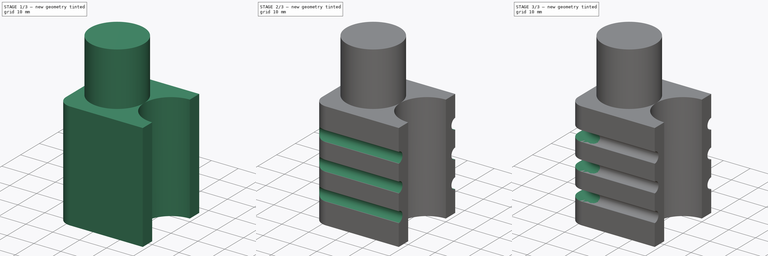
[diagram: build sequence overview — one tinted view per stage of 3, left to right]
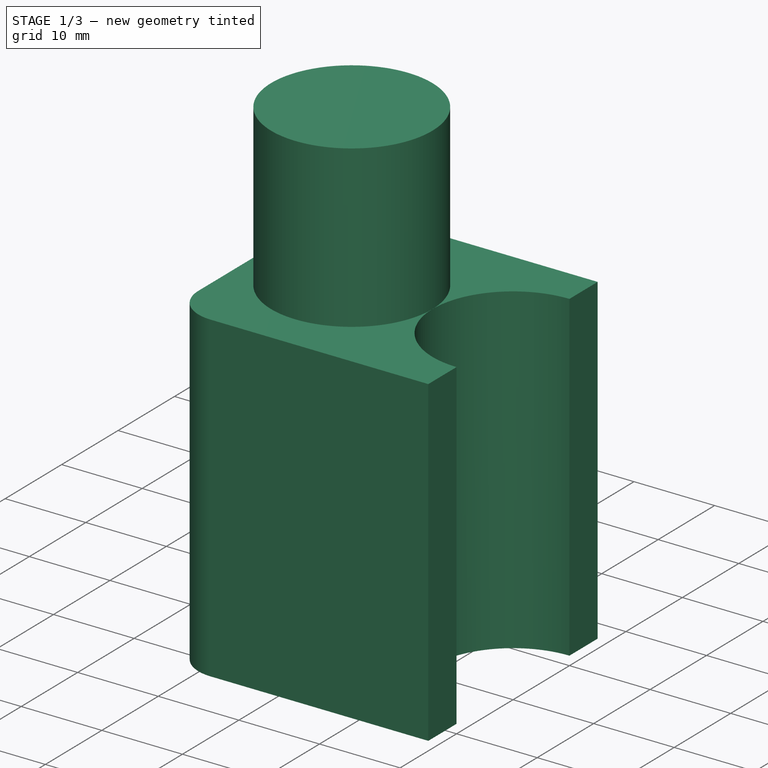
[diagram: stage 1 of 3 — iso view after this stage's code; geometry added in this stage tinted green]
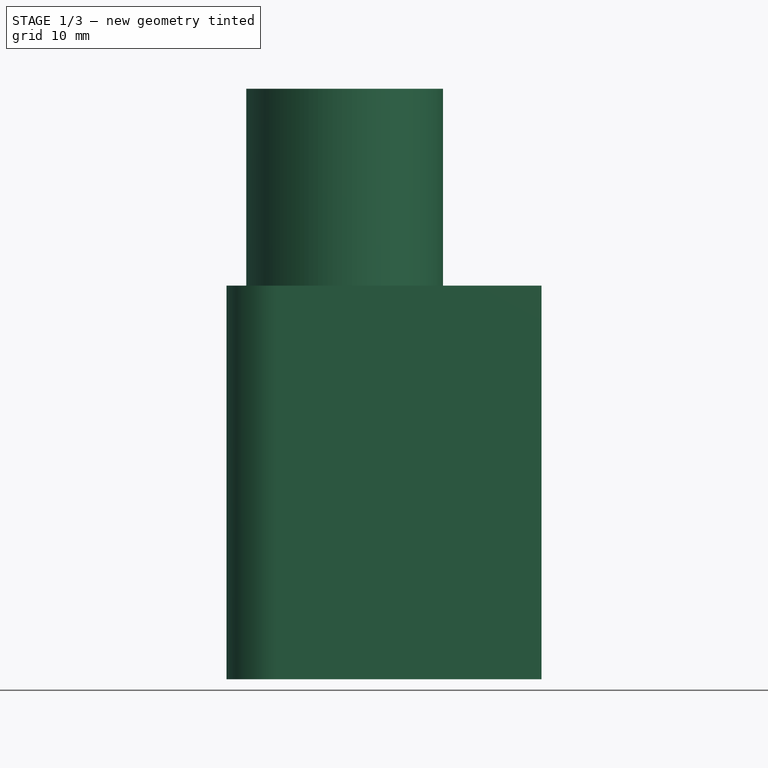
[diagram: stage 1 of 3 — front view after this stage's code; geometry added in this stage tinted green]
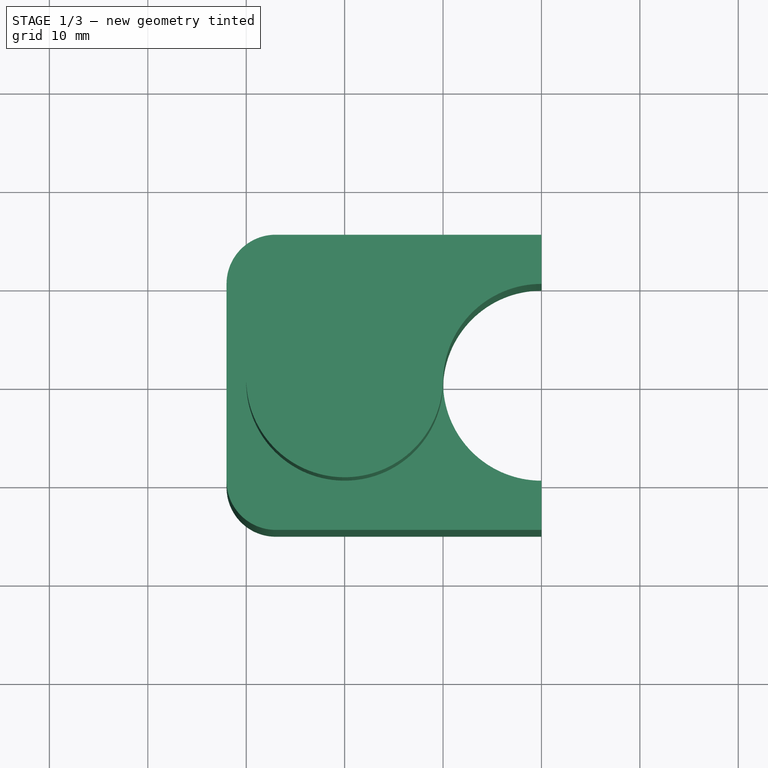
[diagram: stage 1 of 3 — top view after this stage's code; geometry added in this stage tinted green]
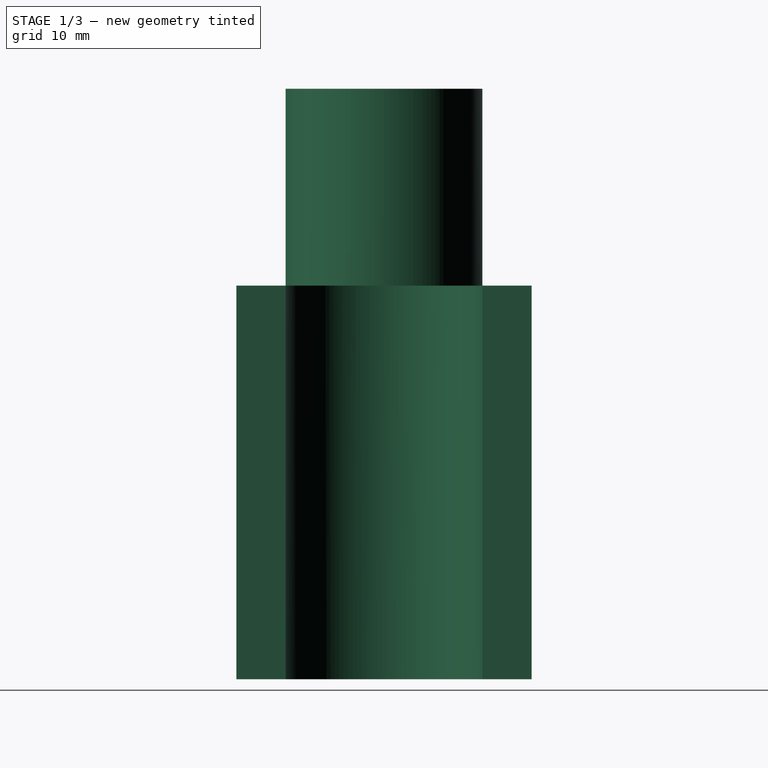
[diagram: stage 1 of 3 — right view after this stage's code; geometry added in this stage tinted green]
FCSTD DOCUMENT  (FreeCAD 0.21R33771 (Git))
Label: christmasTopStarHolder
License: All rights reserved
LicenseURL: http://en.wikipedia.org/wiki/All_rights_reserved
objects: Sketcher::SketchObject×5, PartDesign::Pad×2, PartDesign::Pocket×2, Spreadsheet::Sheet×1, PartDesign::Groove×1, PartDesign::Body×1
note: 16 computed .brp shape members not serialized (recipe doc carries the construction recipe); baked Part::Feature solids carry a one-line shape summary decoded from their .brp

FEATURE [Sketcher::SketchObject] Sketch
  FullyConstrained = true
  MapMode = 5
  Support = -> [XY_Plane]
  sketch-geometry (12):
    g0: LineSegment StartX=-32 StartY=15 StartZ=0 EndX=0 EndY=15 EndZ=0
    g1: LineSegment StartX=0 StartY=-15 StartZ=0 EndX=-32 EndY=-15 EndZ=0
    g2: LineSegment StartX=-32 StartY=-15 StartZ=0 EndX=-32 EndY=15 EndZ=0
    g3: ArcOfCircle CenterX=0 CenterY=0 CenterZ=0 NormalX=0 NormalY=0 NormalZ=1 AngleXU=0 Radius=10 StartAngle=1.5708 EndAngle=4.71239
    g4: LineSegment StartX=0 StartY=15 StartZ=0 EndX=0 EndY=10 EndZ=0
    g5: LineSegment StartX=0 StartY=-10 StartZ=0 EndX=0 EndY=-15 EndZ=0
    g6: Circle CenterX=-20 CenterY=0 CenterZ=0 NormalX=0 NormalY=0 NormalZ=1 AngleXU=0 Radius=10
    g7: LineSegment StartX=-32 StartY=10 StartZ=0 EndX=-32 EndY=-10 EndZ=0
    g8: LineSegment StartX=-27 StartY=-15 StartZ=0 EndX=0 EndY=-15 EndZ=0
    g9: LineSegment StartX=-27 StartY=15 StartZ=0 EndX=0 EndY=15 EndZ=0
    g10: ArcOfCircle CenterX=-27 CenterY=10 CenterZ=0 NormalX=0 NormalY=0 NormalZ=1 AngleXU=0 Radius=5 StartAngle=1.5708 EndAngle=3.14159
    g11: ArcOfCircle CenterX=-27 CenterY=-10 CenterZ=0 NormalX=0 NormalY=0 NormalZ=1 AngleXU=0 Radius=5 StartAngle=3.14159 EndAngle=4.71239
  constraints (32):
    c: Coincident(g1,g2)
    c: Coincident(g2,g0)
    c: Horizontal(g0)
    c: Horizontal(g1)
    c: Coincident(g3,g-1)
    c: Radius(g3) = 10
    c: Vertical(g4)
    c: Coincident(g0,g4)
    c: Coincident(g1,g5)
    c: Coincident(g4,g3)
    c: Coincident(g5,g3)
    c: Symmetric(g0,g1,g-1)
    c: Vertical(g5)
    c: PointOnObject(g3,g-2)
    c: PointOnObject(g3,g-2)
    c: DistanceY(g2,g2) = 30
    c: DistanceX(g0,g0) = 32
    c: PointOnObject(g6,g-1)
    c: Radius(g6) = 10
    c: DistanceX(g6,g3) = 20
    c: Vertical(g7)
    c: Coincident(g8,g5)
    c: Coincident(g9,g4)
    c: Horizontal(g9)
    c: Horizontal(g8)
    c: PointOnObject(g7,g2)
    c: Tangent(g10,g7) = -1.5708
    c: Tangent(g10,g9) = 1.5708
    c: Radius(g10) = 5
    c: Equal(g10,g11)
    c: Tangent(g11,g8) = -1.5708
    c: Tangent(g11,g7) = -1.5708
FEATURE [PartDesign::Pad] Pad
  Direction = (0,0,1)
  Length = 40
  Length2 = 10
  Profile = -> Sketch
  ReferenceAxis = -> Sketch [N_Axis]
  Type = 0
  expr: Length = Spreadsheet.baseHeight
FEATURE [Spreadsheet::Sheet] Spreadsheet
  cells = A2='baseHeight; B2(baseHeight)=40; A4='sidePathR; B4(sidePathR)=2; A7='toRodCenter; B7(toRodCenter)=20
FEATURE [Sketcher::SketchObject] Sketch001
  AttachmentOffset = pos=(0,0,40) rot=(0,0,1;0rad)
  FullyConstrained = true
  MapMode = 5
  Placement = pos=(0,0,40) rot=(0,0,1;0rad)
  Support = -> [XY_Plane]
  expr: .AttachmentOffset.Base.z = Spreadsheet.baseHeight
  sketch-geometry (1):
    g0: Circle CenterX=-20 CenterY=0 CenterZ=0 NormalX=0 NormalY=0 NormalZ=1 AngleXU=0 Radius=10
  constraints (3):
    c: PointOnObject(g0,g-1)
    c: Radius(g0) = 10
    c: DistanceX(g0,g-1) = 20
FEATURE [PartDesign::Pad] Pad001
  BaseFeature = -> Pad
  Direction = (0,0,1)
  Length = 20
  Length2 = 10
  Profile = -> Sketch001
  ReferenceAxis = -> Sketch001 [N_Axis]
  Type = 0
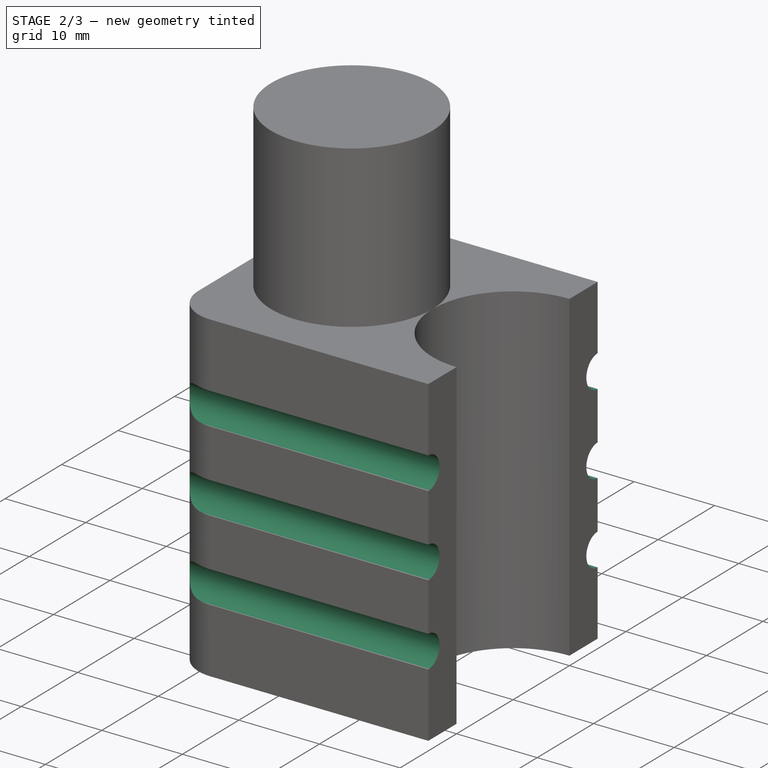
[diagram: stage 2 of 3 — iso view after this stage's code; geometry added in this stage tinted green]
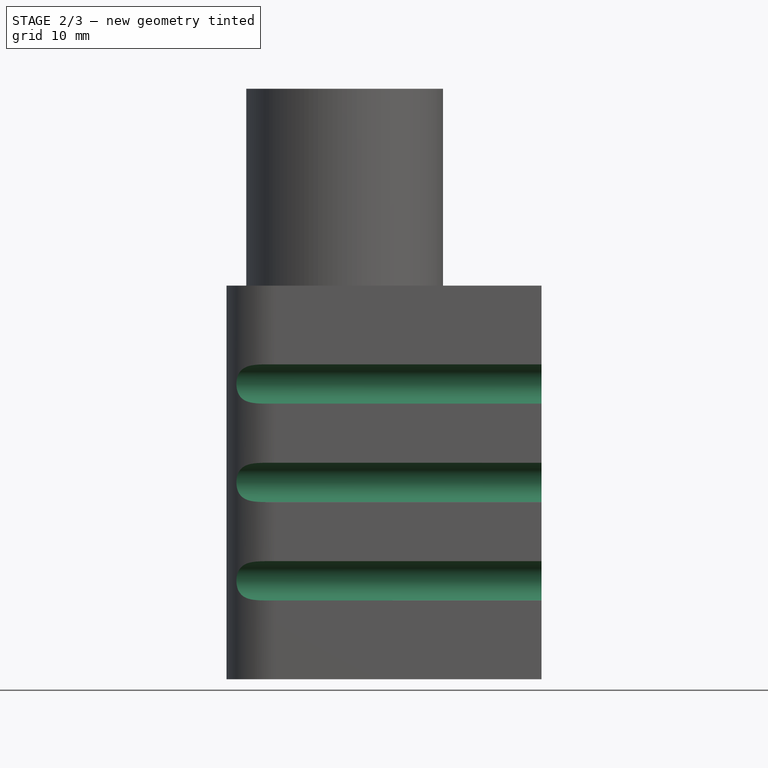
[diagram: stage 2 of 3 — front view after this stage's code; geometry added in this stage tinted green]
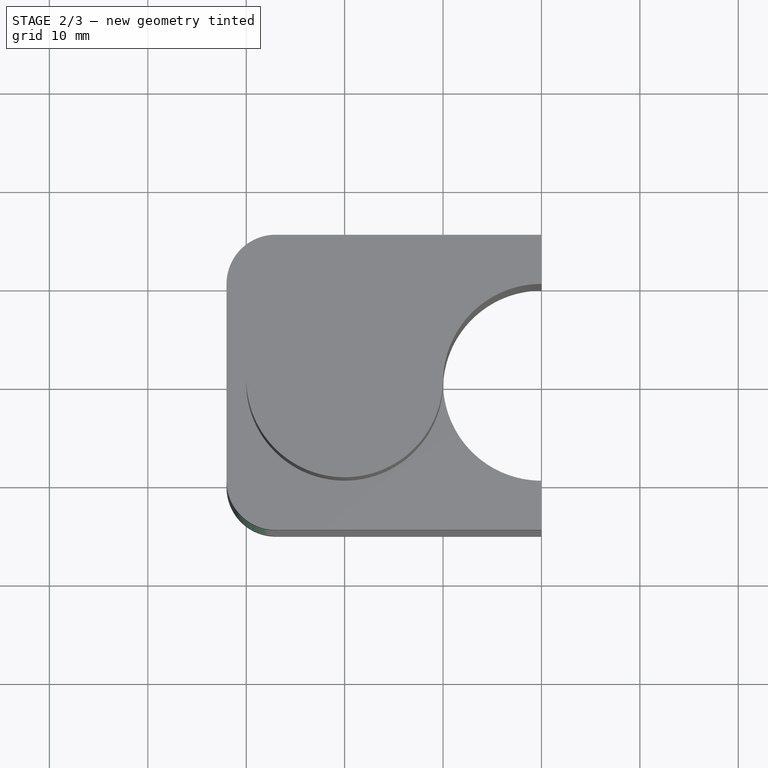
[diagram: stage 2 of 3 — top view after this stage's code; geometry added in this stage tinted green]
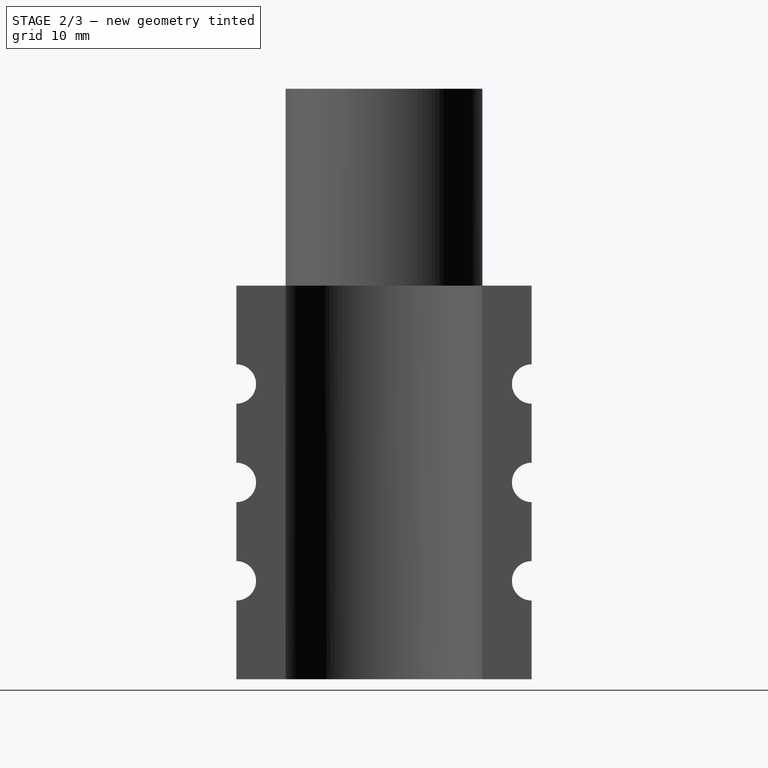
[diagram: stage 2 of 3 — right view after this stage's code; geometry added in this stage tinted green]
FEATURE [Sketcher::SketchObject] Sketch002
  FullyConstrained = true
  MapMode = 5
  Placement = pos=(0,0,0) rot=(0.57735,0.57735,0.57735;2.0944rad)
  Support = -> [YZ_Plane]
  expr: Constraints[0] = Spreadsheet.sidePathR
  expr: Constraints[15] = Spreadsheet.baseHeight / 2
  expr: Constraints[1] = Spreadsheet.sidePathR
  expr: Constraints[2] = Spreadsheet.baseHeight / 2
  sketch-geometry (10):
    g0: Circle CenterX=-15 CenterY=20 CenterZ=0 NormalX=0 NormalY=0 NormalZ=1 AngleXU=0 Radius=2
    g1: Circle CenterX=15 CenterY=20 CenterZ=0 NormalX=0 NormalY=0 NormalZ=1 AngleXU=0 Radius=2
    g2: LineSegment StartX=-15 StartY=30 StartZ=0 EndX=15 EndY=30 EndZ=0
    g3: LineSegment StartX=15 StartY=30 StartZ=0 EndX=15 EndY=10 EndZ=0
    g4: LineSegment StartX=15 StartY=10 StartZ=0 EndX=-15 EndY=10 EndZ=0
    g5: LineSegment StartX=-15 StartY=10 StartZ=0 EndX=-15 EndY=30 EndZ=0
    g6: Circle CenterX=-15 CenterY=30 CenterZ=0 NormalX=0 NormalY=0 NormalZ=1 AngleXU=0 Radius=2
    g7: Circle CenterX=-15 CenterY=10 CenterZ=0 NormalX=0 NormalY=0 NormalZ=1 AngleXU=0 Radius=2
    g8: Circle CenterX=15 CenterY=30 CenterZ=0 NormalX=0 NormalY=0 NormalZ=1 AngleXU=0 Radius=2
    g9: Circle CenterX=15 CenterY=10 CenterZ=0 NormalX=0 NormalY=0 NormalZ=1 AngleXU=0 Radius=2
  constraints (24):
    c: Radius(g0) = 2
    c: Radius(g1) = 2
    c: DistanceY(g-1,g1) = 20
    c: Symmetric(g1,g0,g-2)
    c: DistanceX(g-1,g1) = 15
    c: Coincident(g2,g3)
    c: Coincident(g3,g4)
    c: Coincident(g4,g5)
    c: Coincident(g5,g2)
    c: Horizontal(g2)
    c: Horizontal(g4)
    c: Vertical(g3)
    c: Vertical(g5)
    c: PointOnObject(g1,g3)
    c: Symmetric(g2,g4,g0)
    c: DistanceY(g5,g5) = 20
    c: Coincident(g6,g2)
    c: Coincident(g7,g4)
    c: Coincident(g8,g2)
    c: Coincident(g9,g3)
    c: Equal(g0,g6)
    c: Equal(g7,g0)
    c: Equal(g9,g0)
    c: Equal(g8,g0)
FEATURE [PartDesign::Pocket] Pocket
  BaseFeature = -> Pad001
  Direction = (-1,2e-16,-3e-16)
  Length = 5
  Length2 = 5
  Profile = -> Sketch002
  ReferenceAxis = -> Sketch002 [N_Axis]
  Type = 1
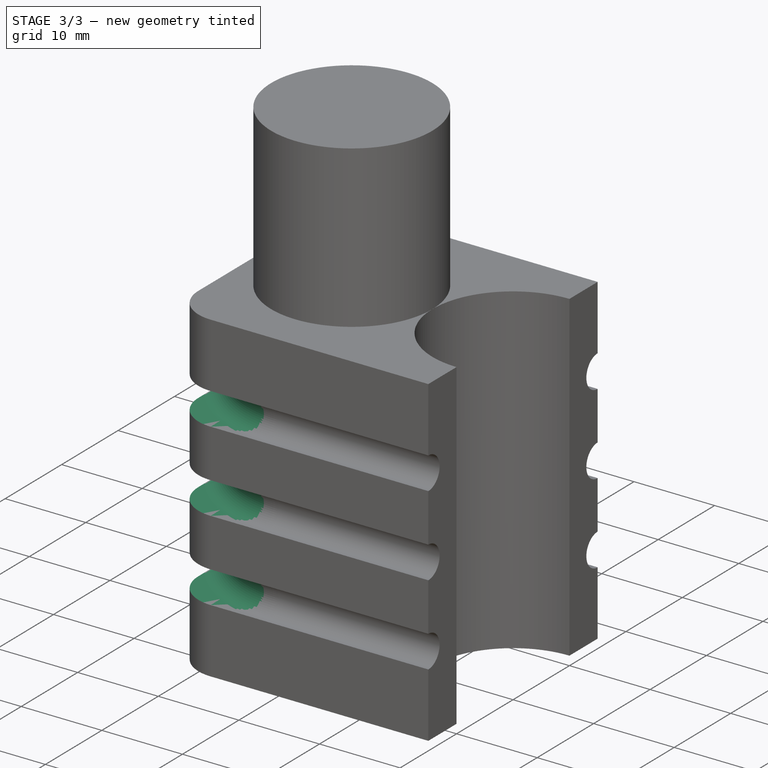
[diagram: stage 3 of 3 — iso view after this stage's code; geometry added in this stage tinted green]
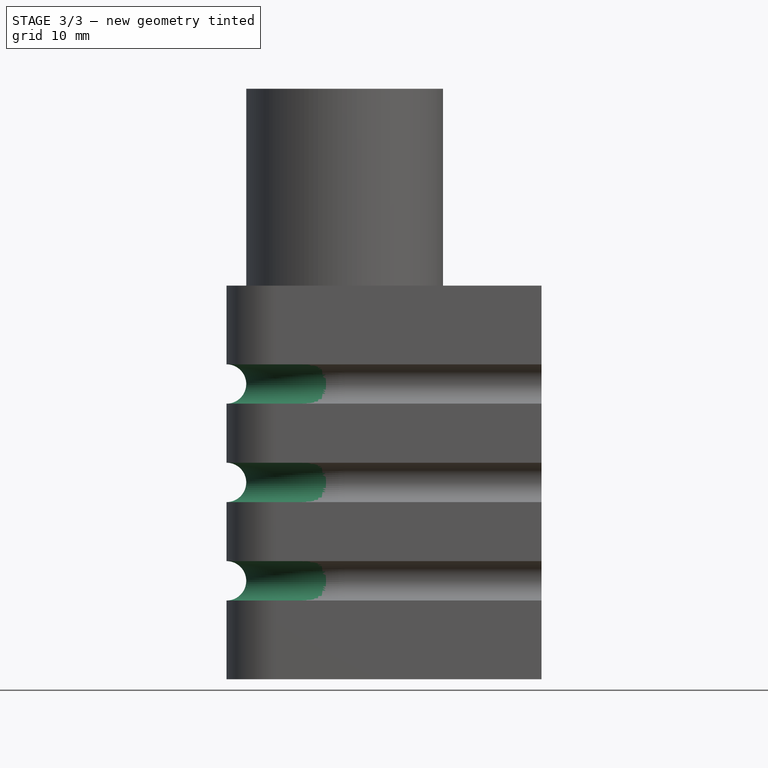
[diagram: stage 3 of 3 — front view after this stage's code; geometry added in this stage tinted green]
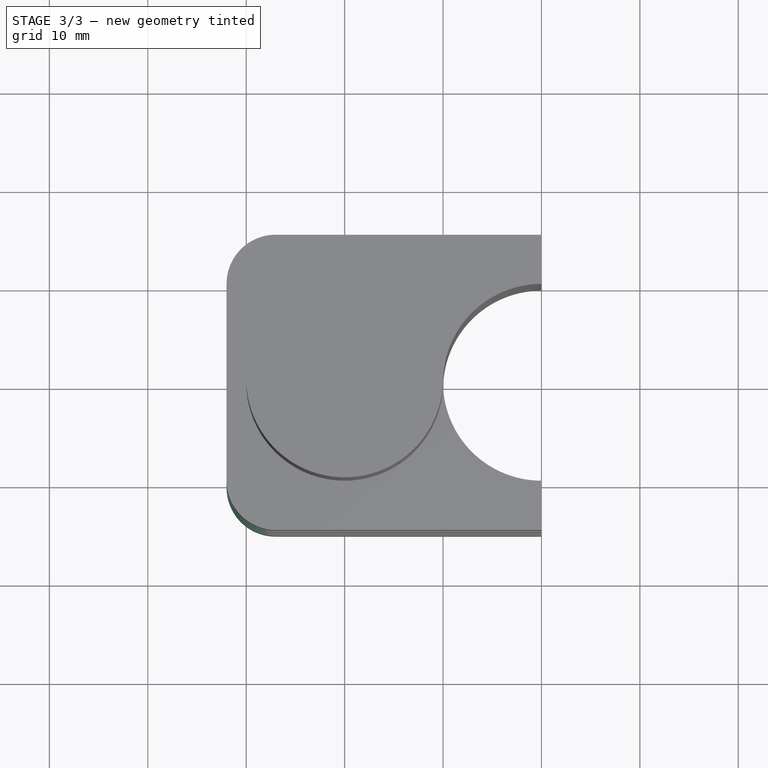
[diagram: stage 3 of 3 — top view after this stage's code; geometry added in this stage tinted green]
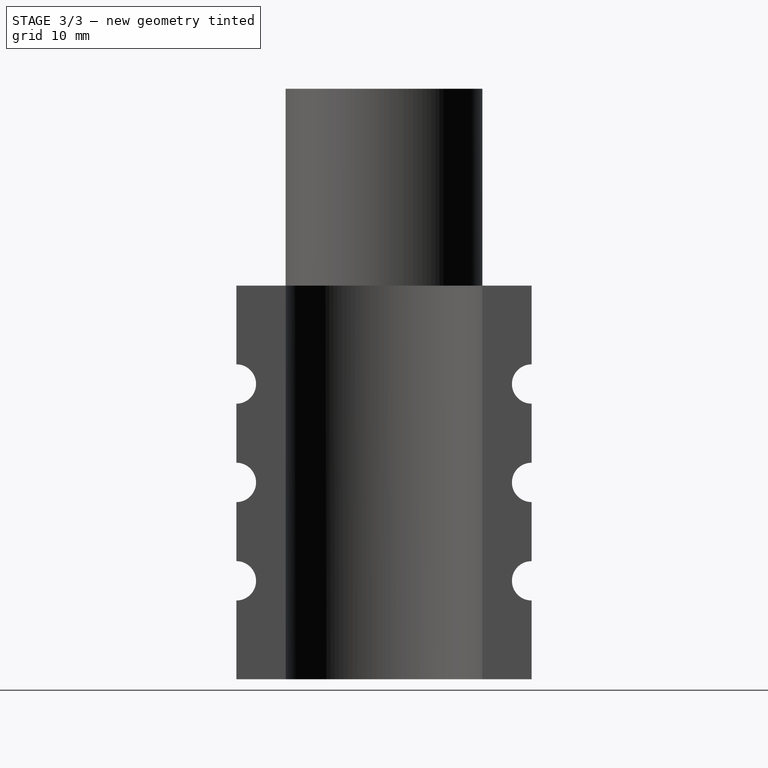
[diagram: stage 3 of 3 — right view after this stage's code; geometry added in this stage tinted green]
FEATURE [Sketcher::SketchObject] Sketch003
  FullyConstrained = true
  MapMode = 5
  Placement = pos=(0,0,0) rot=(1,0,0;1.5708rad)
  Support = -> [XZ_Plane]
  expr: Constraints[0] = Spreadsheet.baseHeight / 2
  expr: Constraints[2] = Spreadsheet.sidePathR
  expr: Constraints[5] = Spreadsheet.baseHeight / 2
  sketch-geometry (4):
    g0: Circle CenterX=-32 CenterY=20 CenterZ=0 NormalX=0 NormalY=0 NormalZ=1 AngleXU=0 Radius=2
    g1: LineSegment StartX=-32 StartY=30 StartZ=0 EndX=-32 EndY=10 EndZ=0
    g2: Circle CenterX=-32 CenterY=30 CenterZ=0 NormalX=0 NormalY=0 NormalZ=1 AngleXU=0 Radius=2
    g3: Circle CenterX=-32 CenterY=10 CenterZ=0 NormalX=0 NormalY=0 NormalZ=1 AngleXU=0 Radius=2
  constraints (10):
    c: DistanceY(g-1,g0) = 20
    c: DistanceX(g0,g-1) = 32
    c: Radius(g0) = 2
    c: Vertical(g1)
    c: Symmetric(g1,g1,g0)
    c: DistanceY(g1,g1) = 20
    c: Coincident(g2,g1)
    c: Coincident(g3,g1)
    c: Equal(g2,g0)
    c: Equal(g3,g0)
FEATURE [PartDesign::Pocket] Pocket001
  BaseFeature = -> Pocket
  Direction = (0,1,-2e-16)
  Length = 5
  Length2 = 5
  Midplane = true
  Profile = -> Sketch003
  ReferenceAxis = -> Sketch003 [N_Axis]
  Type = 1
FEATURE [Sketcher::SketchObject] Sketch004
  AttachmentOffset = pos=(0,0,-20) rot=(0,0,1;0rad)
  FullyConstrained = true
  MapMode = 5
  Placement = pos=(-20,4.4e-15,-4.4e-15) rot=(0.57735,0.57735,0.57735;2.0944rad)
  Support = -> [YZ_Plane]
  expr: .AttachmentOffset.Base.z = -Spreadsheet.toRodCenter
  expr: Constraints[0] = Spreadsheet.sidePathR
  expr: Constraints[1] = Spreadsheet.baseHeight / 4
  expr: Constraints[5] = Spreadsheet.baseHeight / 2
  sketch-geometry (13):
    g0: ArcOfCircle CenterX=-15 CenterY=10 CenterZ=0 NormalX=0 NormalY=0 NormalZ=1 AngleXU=0 Radius=2 StartAngle=4.71239 EndAngle=7.85398
    g1: LineSegment StartX=-15 StartY=10 StartZ=0 EndX=-15 EndY=30 EndZ=0
    g2: ArcOfCircle CenterX=-15 CenterY=30 CenterZ=0 NormalX=0 NormalY=0 NormalZ=1 AngleXU=0 Radius=2 StartAngle=4.71239 EndAngle=7.85398
    g3: ArcOfCircle CenterX=-15 CenterY=20 CenterZ=0 NormalX=0 NormalY=0 NormalZ=1 AngleXU=0 Radius=2 StartAngle=4.71239 EndAngle=7.85398
    g4: LineSegment StartX=-25 StartY=32 StartZ=0 EndX=-25 EndY=28 EndZ=0
    g5: LineSegment StartX=-15 StartY=22 StartZ=0 EndX=-25 EndY=22 EndZ=0
    g6: LineSegment StartX=-25 StartY=22 StartZ=0 EndX=-25 EndY=18 EndZ=0
    g7: LineSegment StartX=-25 StartY=18 StartZ=0 EndX=-15 EndY=18 EndZ=0
    g8: LineSegment StartX=-15 StartY=12 StartZ=0 EndX=-25 EndY=12 EndZ=0
    g9: LineSegment StartX=-25 StartY=12 StartZ=0 EndX=-25 EndY=8 EndZ=0
    g10: LineSegment StartX=-25 StartY=8 StartZ=0 EndX=-15 EndY=8 EndZ=0
    g11: LineSegment StartX=-25 StartY=32 StartZ=0 EndX=-15 EndY=32 EndZ=0
    g12: LineSegment StartX=-25 StartY=28 StartZ=0 EndX=-15 EndY=28 EndZ=0
  constraints (36):
    c: Radius(g0) = 2
    c: DistanceY(g-1,g0) = 10
    c: DistanceX(g0,g-1) = 15
    c: Coincident(g1,g0)
    c: Vertical(g1)
    c: DistanceY(g1,g1) = 20
    c: Coincident(g2,g1)
    c: Equal(g3,g0)
    c: Equal(g2,g0)
    c: Symmetric(g2,g0,g3)
    c: Vertical(g4)
    c: Coincident(g5,g6)
    c: Coincident(g6,g7)
    c: Horizontal(g5)
    c: Horizontal(g7)
    c: Vertical(g6)
    c: Coincident(g8,g9)
    c: Coincident(g9,g10)
    c: Horizontal(g8)
    c: Horizontal(g10)
    c: Vertical(g9)
    c: Equal(g5,g8)
    c: Tangent(g8,g0) = -1.5708
    c: PointOnObject(g2,g1)
    c: Tangent(g3,g5) = -1.5708
    c: Tangent(g3,g7) = -1.5708
    c: PointOnObject(g0,g1)
    c: Tangent(g0,g10) = -1.5708
    c: Coincident(g11,g4)
    c: Horizontal(g11)
    c: Coincident(g12,g4)
    c: Coincident(g12,g2)
    c: Horizontal(g12)
    c: Tangent(g2,g11) = 1.5708
    c: Equal(g12,g5)
    c: DistanceX(g11,g11) = 10
FEATURE [PartDesign::Groove] Groove
  Angle = 180
  Axis = (-2e-16,3e-16,1)
  Base = (-20,4.4e-15,-4.4e-15)
  BaseFeature = -> Pocket001
  Profile = -> Sketch004
  ReferenceAxis = -> Sketch004 [V_Axis]
  Reversed = true
FEATURE [PartDesign::Body] Body
  Group = -> [Sketch,Pad,Sketch001,Pad001,Sketch002,Pocket,Sketch003,Pocket001,Sketch004,Groove]
  Origin = -> Origin
  Tip = -> Groove
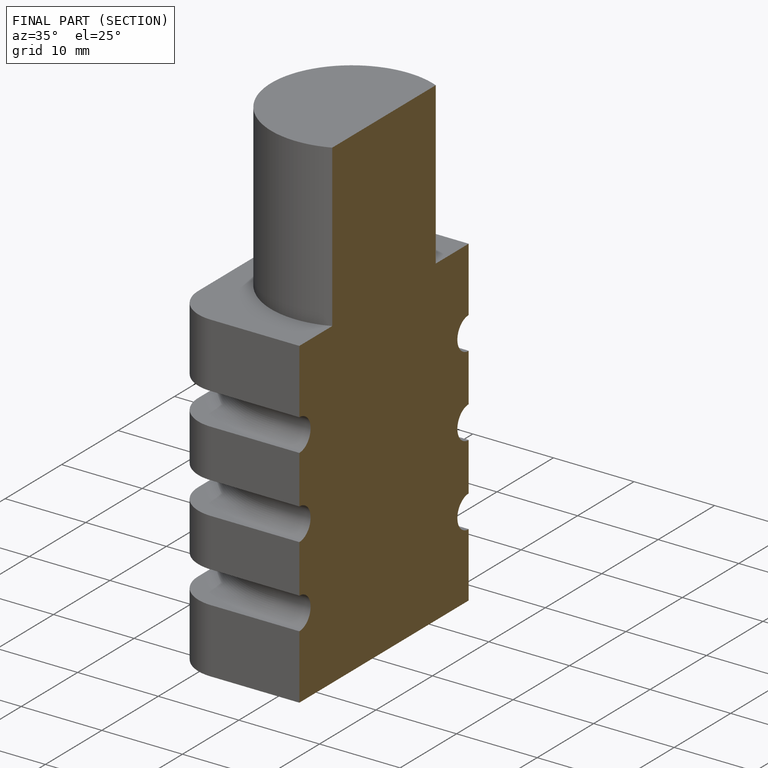
[diagram: finished part — half-section view (interior)]
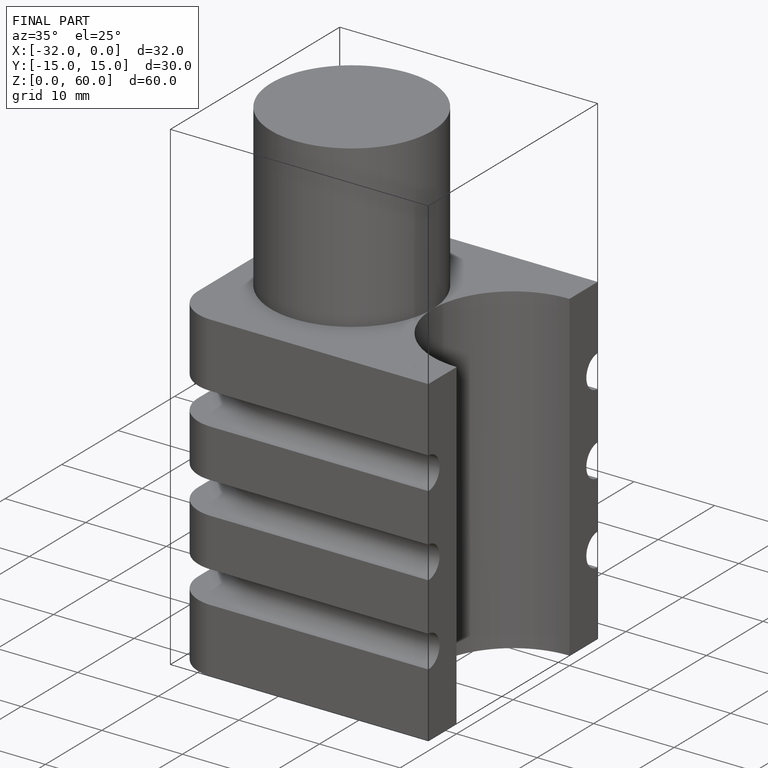
[diagram: finished part — iso view with bounding-box wireframe]
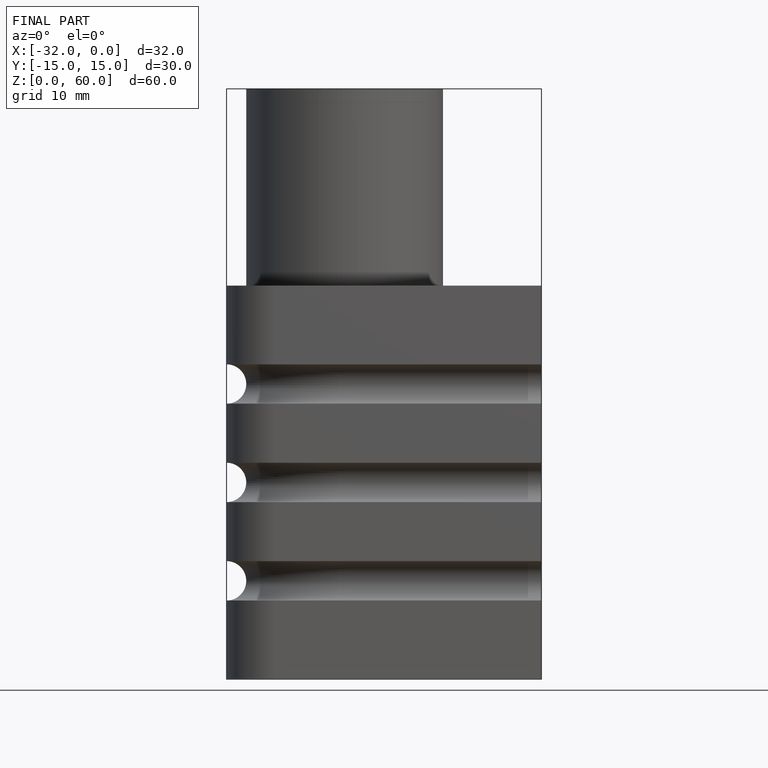
[diagram: finished part — front view with bounding-box wireframe]
